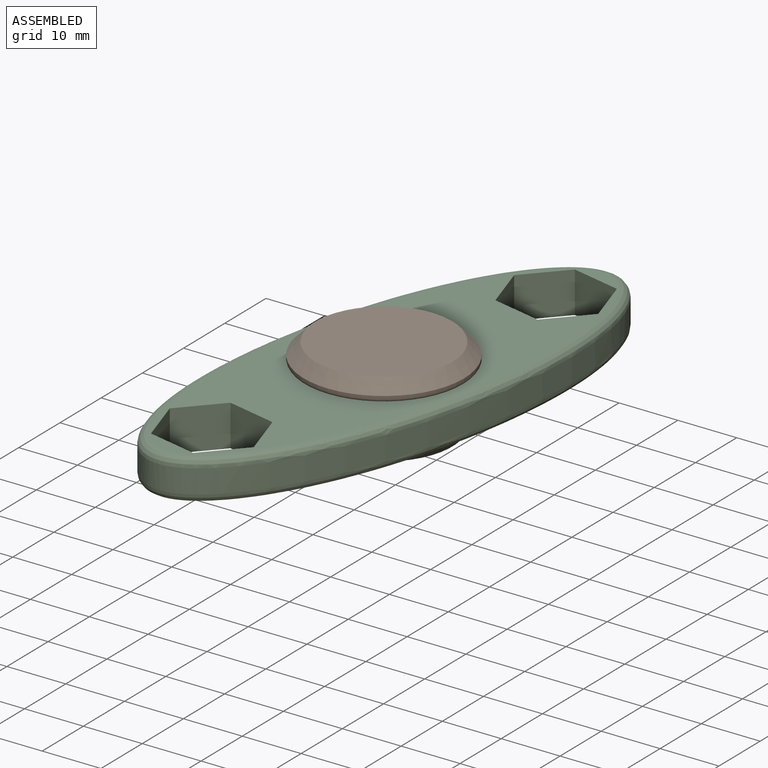
[diagram: assembled view]
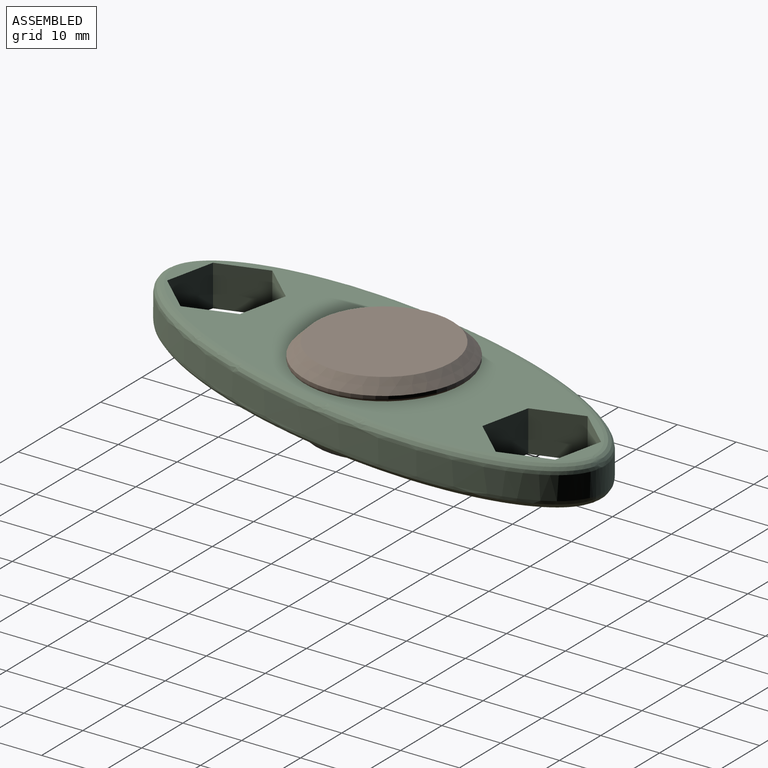
[diagram: assembled view, second angle]
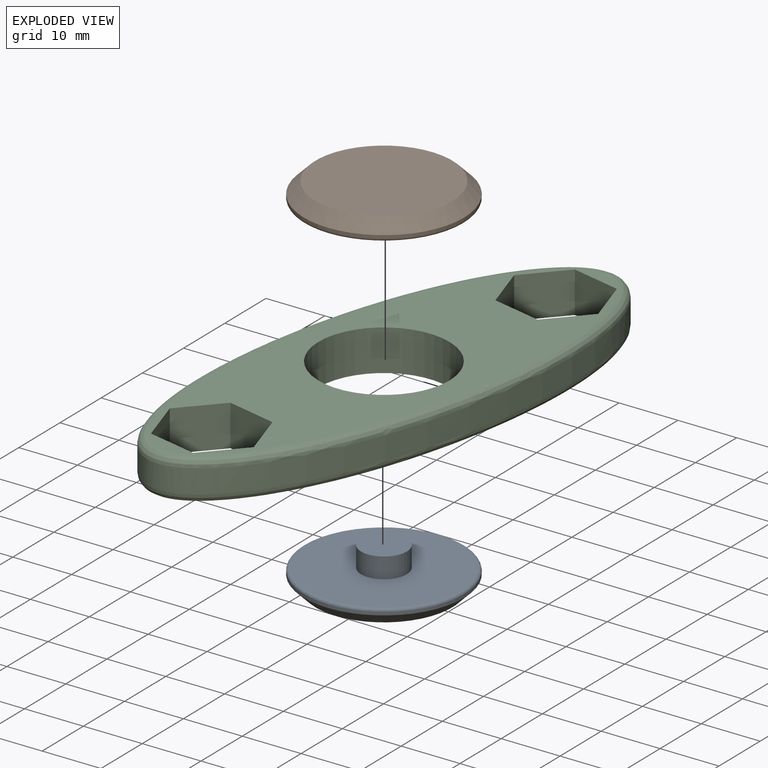
[diagram: exploded view]
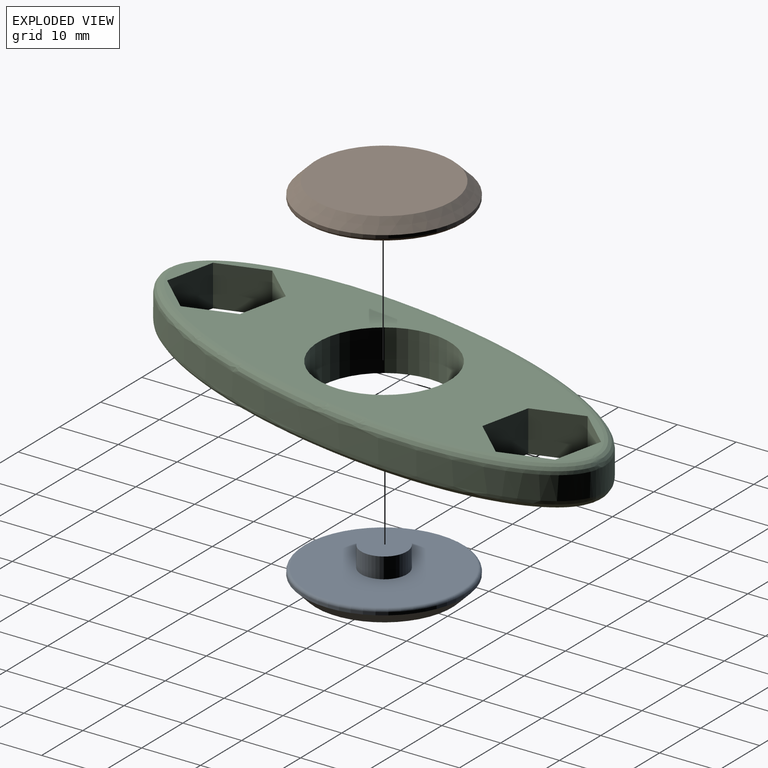
[diagram: exploded view, second angle]
ASSEMBLY  parts=3 mates=2
PART A: 7 faces, bbox 29.5x29.5x6.5 mm
  f0: cylinder r=3.88mm len=7.75mm, axis (0,0,-1), area 85.2mm2, adj f1,f4
  f1: plane 7.75x7.75mm, normal (0,0,1), area 47.2mm2, adj f0
  f2: cylinder r=13.62mm len=27.25mm, axis (0,0,1), area 42.8mm2, adj f5,f6
  f3: plane 23.25x23.25mm, normal (0,0,-1), area 424.6mm2, adj f5
  f4: plane 26.25x26.25mm, normal (0,0,1), area 494mm2, adj f0,f6
  f5: cone r=13.62mm half-angle=45deg, axis (0,0,1), area 224.4mm2, adj f2,f3
  f6: torus R=13.12mm, axis (0,0,-1), area 66.3mm2, adj f2,f4
PART B: 7 faces, bbox 29.5x29.5x6.5 mm
  f0: cylinder r=3.88mm len=7.75mm, axis (0,0,1), area 85.2mm2, adj f1,f4
  f1: plane 7.75x7.75mm, normal (0,0,-1), area 47.2mm2, adj f0
  f2: cylinder r=13.62mm len=27.25mm, axis (0,0,-1), area 42.8mm2, adj f5,f6
  f3: plane 23.25x23.25mm, normal (0,0,1), area 424.6mm2, adj f5
  f4: plane 26.25x26.25mm, normal (0,0,-1), area 494mm2, adj f0,f6
  f5: cone r=11.62mm half-angle=45deg, axis (0,0,-1), area 224.4mm2, adj f2,f3
  f6: torus R=13.12mm, axis (0,0,1), area 66.3mm2, adj f2,f4
PART C: 18 faces, bbox 88x33.3x7 mm
  f0: plane 8.66x7mm, normal (-1,0,0), area 60.6mm2, adj f1,f11,f14,f15
  f1: plane 7.5x7mm, normal (-0.5,0.87,0), area 60.6mm2, adj f0,f2,f14,f15
  f2: plane 7.5x7mm, normal (0.5,0.87,0), area 60.6mm2, adj f1,f3,f14,f15
  f3: plane 8.66x7mm, normal (1,0,0), area 60.6mm2, adj f2,f4,f14,f15
  f4: plane 7.5x7mm, normal (0.5,-0.87,0), area 60.6mm2, adj f3,f11,f14,f15
  f5: plane 7.5x7mm, normal (0.5,-0.87,0), area 60.6mm2, adj f6,f12,f14,f15
  f6: plane 7.5x7mm, normal (-0.5,-0.87,0), area 60.6mm2, adj f5,f7,f14,f15
  f7: plane 8.66x7mm, normal (-1,0,0), area 60.6mm2, adj f6,f8,f14,f15
  f8: plane 7.5x7mm, normal (-0.5,0.87,0), area 60.6mm2, adj f7,f9,f14,f15
  f9: plane 7.5x7mm, normal (0.5,0.87,0), area 60.6mm2, adj f8,f12,f14,f15
  f10: cylinder r=11.12mm len=22.25mm, axis (0,0,-1), area 489.3mm2, adj f14,f15
  f11: plane 7.5x7mm, normal (-0.5,-0.87,0), area 60.6mm2, adj f0,f4,f14,f15
  f12: plane 8.66x7mm, normal (1,0,0), area 60.6mm2, adj f5,f9,f14,f15
  f13: extruded ~87.99x33.25mm, area 801.3mm2, adj f16,f17
  f14: plane 85x30.26mm, normal (0,0,1), area 1233.5mm2, adj f0,f1,f2,f3,f4,f5,f6,f7
  f15: plane 85x30.26mm, normal (0,0,-1), area 1233.5mm2, adj f0,f1,f2,f3,f4,f5,f6,f7
  f16: bspline ~88.01x33.26mm, area 464.1mm2, adj f13,f15
  f17: bspline ~88.01x33.26mm, area 464.1mm2, adj f13,f14
PLACE A t=(-0.24,-0.98,1.98)mm fixed
PLACE B t=(-0.24,-0.98,1.98)mm
PLACE C rot(axis=(0,0,-1),102.5deg) t=(-0.24,-0.98,1.98)mm
MATE revolute A.f0 <-> C.f10  axis (0,0,-1) through (-0.24,-0.98,1.98)mm
MATE fastened B.f0 <-> A.f0  axis (0,0,-1) through (-0.24,-0.98,1.98)mm
